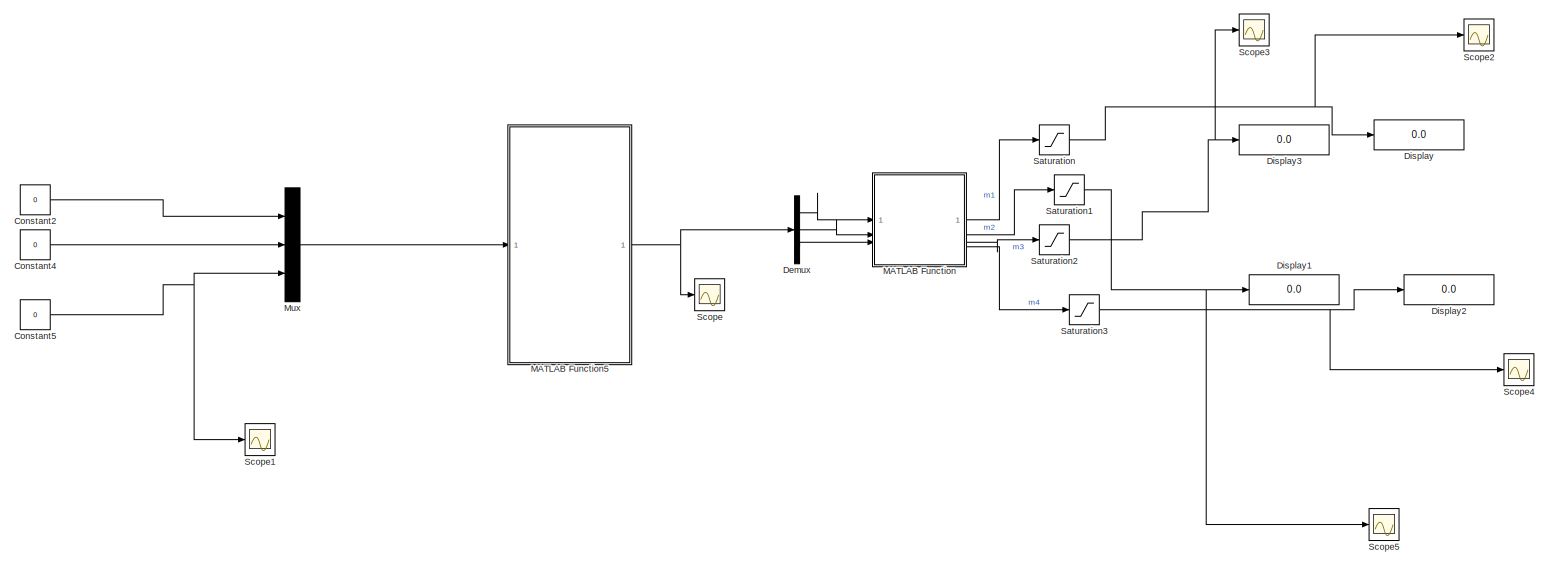
[diagram: root canvas - part 1/1, most of the canvas]
MODEL slx_47c00afb39b6
KIND model
CONFIG AbsTol = auto
CONFIG EnableMultiTasking = on
CONFIG FixedStep = 0.0201
CONFIG InitFcn = load2slx
CONFIG MaxStep = auto
CONFIG MinStep = auto
CONFIG RelTol = 1e-3
CONFIG SampleTimeConstraint = Unconstrained
CONFIG SolverName = FixedStepAuto
CONFIG StartTime = 0.0
CONFIG StopTime = inf
WORKSPACE source: mxarray member
WORKSPACE F = [-0.8618 -0.0262 -0.139 0.76949416 0.05909612 0.20636922 -0.703196288826 -0.093762205164 -0.235412147826 0.652041778329 0.127673420976 0.244158287043 ... (45 elements, 15x3)]
WORKSPACE G = [1.8979 -0.0159 0.0655 -1.64786658 -0.03982206 -0.30473041 1.47864328465 0.106322265122 0.418938594273 -1.35541161888 -0.175057741134 -0.466355599848 ... (225 elements, 15x15)]
WORKSPACE H = [129.750680259 -7.60010398556 -19.5429084562 -100.35260221 7.92753113853 14.4815749694 74.3205001843 -7.58160232914 -10.6139187187 -49.5448089621 6.25955402468 7.17559354227 ... (225 elements, 15x15)]
WORKSPACE Pc = [-1.8979 0.0159 -0.0655 1.8979 -0.0159 0.0655 1.64786658 0.03982206 0.30473041 -1.64786658 -0.03982206 -0.30473041 ... (990 elements, 66x15)]
WORKSPACE Qvec = [10 0 0 0 0 0 0 0 0 0 0 0 ... (225 elements, 15x15)]
WORKSPACE Sc = [-0.8618 -0.0262 -0.139 0.8618 0.0262 0.139 0.76949416 0.05909612 0.20636922 -0.76949416 -0.05909612 -0.20636922 ... (198 elements, 66x3)]
WORKSPACE m = 3
WORKSPACE nu = 15
WORKSPACE qc = [1 1 0.5 1 1 0.5 1 1 0.5 1 1 0.5 ... (66 elements, 66x1)]
BLOCK [Constant] Constant2
  Value = 0
BLOCK [Constant] Constant4
  Value = 0
BLOCK [Constant] Constant5
  Value = 0
BLOCK [Demux] Demux
  Outputs = 3
BLOCK [Display] Display
  Decimation = 1
BLOCK [Display] Display1
  Decimation = 1
BLOCK [Display] Display2
  Decimation = 1
BLOCK [Display] Display3
  Decimation = 1
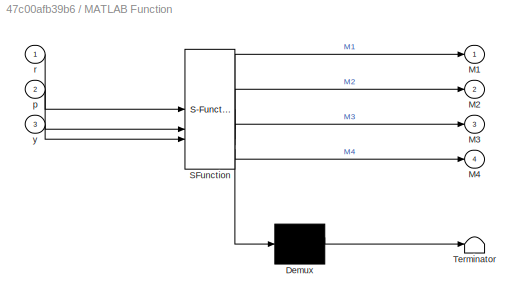
BLOCK [SubSystem] MATLAB Function
  ErrorFcn = Stateflow.Translate.translate
  PermitHierarchicalResolution = ExplicitOnly
  SFBlockType = MATLAB Function
  SystemSampleTime = 0.0201
  TreatAsAtomicUnit = on
BLOCK [Demux] MATLAB Function/ Demux 
  Outputs = 1
BLOCK [S-Function] MATLAB Function/ SFunction 
  EnableBusSupport = off
  FunctionName = sf_sfun
  PortCounts = [3 5]
  SFcnIsStateOwnerBlock = off
  SFunctionDeploymentMode = off
  Tag = Stateflow S-Function 2
BLOCK [Terminator] MATLAB Function/ Terminator 
BLOCK [Outport] MATLAB Function/M1
  VectorParamsAs1DForOutWhenUnconnected = off
BLOCK [Outport] MATLAB Function/M2
  Port = 2
BLOCK [Outport] MATLAB Function/M3
  Port = 3
BLOCK [Outport] MATLAB Function/M4
  Port = 4
BLOCK [Inport] MATLAB Function/p
  Port = 2
BLOCK [Inport] MATLAB Function/r
BLOCK [Inport] MATLAB Function/y
  Port = 3
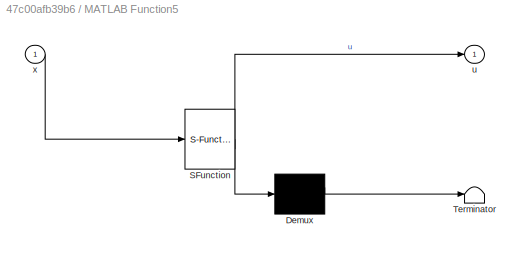
BLOCK [SubSystem] MATLAB Function5
  ErrorFcn = Stateflow.Translate.translate
  PermitHierarchicalResolution = ExplicitOnly
  SFBlockType = MATLAB Function
  SystemSampleTime = 0.0201
  TreatAsAtomicUnit = on
BLOCK [Demux] MATLAB Function5/ Demux 
  Outputs = 1
BLOCK [S-Function] MATLAB Function5/ SFunction 
  EnableBusSupport = off
  FunctionName = sf_sfun
  Parameters = F,G,H,Pc,Qvec,Sc,qc
  PortCounts = [1 2]
  SFcnIsStateOwnerBlock = off
  SFunctionDeploymentMode = off
  Tag = Stateflow S-Function 6
BLOCK [Terminator] MATLAB Function5/ Terminator 
BLOCK [Outport] MATLAB Function5/u
  VectorParamsAs1DForOutWhenUnconnected = off
BLOCK [Inport] MATLAB Function5/x
BLOCK [Mux] Mux
  DisplayOption = bar
  Inputs = 3
BLOCK [Saturate] Saturation
  LowerLimit = 0
  UpperLimit = 1
BLOCK [Saturate] Saturation1
  LowerLimit = 0
  UpperLimit = 1
BLOCK [Saturate] Saturation2
  LowerLimit = 0
  UpperLimit = 1
BLOCK [Saturate] Saturation3
  LowerLimit = 0
  UpperLimit = 1
BLOCK [Scope] Scope
  ActiveDisplayYMaximum = 0.097577906132606917
  ActiveDisplayYMinimum = -0.053985449326909025
  Floating = off
  GraphicalSettings = {"AxesScalingProperties":{"AlignXAxis":"Center","AlignYAxis":"Center","AutoScaleXAxisLimits":false,"AxesScaling":"Manual","AxesScalingNumUpdates":10,"ExpandOnly":true,"ScaleAxesLimitsAtStop":false,"XAxisDataRange":100,"YAxisDataRange":80},"DisplayProperties":{"ColorOrder":["auto","auto","auto","auto","auto","auto","auto","auto","auto","auto","auto","auto","auto","auto","auto","auto","auto","auto",...<+2276ch>
  MultipleDisplayCache = [{"MaxYLimMag":10,"MaxYLimReal":0.097577906132606917,"MinYLimMag":0,"MinYLimReal":-0.053985449326909025,"PlotAsMagnitudePhase":false,"ShowGrid":true,"ShowLegend":true,"Title":"%<SignalLabel>","YLabel":""}]
  NumInputPorts = 1
  ScopeFrameLocation = window
  ShowLegend = on
  WasSavedAsWebScope = on
  WindowPosition = [1319.000000,239.000000,560.000000,420.000000,]
BLOCK [Scope] Scope1
  DataLoggingVariableName = ScopeData1
  Floating = off
  GraphicalSettings = {"GraphicalSettings":{"LegacySettings":true,"Style":{"Style":{"PlotType":"Auto"}}}}
  NumInputPorts = 1
  ScopeFrameLocation = window
  WasSavedAsWebScope = on
  WindowPosition = [1947.000000,365.000000,560.000000,420.000000,]
BLOCK [Scope] Scope2
  DataLoggingVariableName = ScopeData2
  Floating = off
  GraphicalSettings = {"GraphicalSettings":{"LegacySettings":true,"Style":{"Style":{"PlotType":"Auto"}}}}
  NumInputPorts = 1
  ScopeFrameLocation = window
  WasSavedAsWebScope = on
  WindowPosition = [3094.000000,516.000000,560.000000,420.000000,]
BLOCK [Scope] Scope3
  DataLoggingVariableName = ScopeData3
  Floating = off
  GraphicalSettings = {"GraphicalSettings":{"LegacySettings":true,"Style":{"Style":{"PlotType":"Auto"}}}}
  NumInputPorts = 1
  ScopeFrameLocation = window
  WasSavedAsWebScope = on
  WindowPosition = [2378.000000,510.000000,560.000000,420.000000,]
BLOCK [Scope] Scope4
  DataLoggingVariableName = ScopeData4
  Floating = off
  GraphicalSettings = {"GraphicalSettings":{"LegacySettings":true,"Style":{"Style":{"PlotType":"Auto"}}}}
  NumInputPorts = 1
  ScopeFrameLocation = window
  WasSavedAsWebScope = on
  WindowPosition = [3129.000000,16.000000,560.000000,420.000000,]
BLOCK [Scope] Scope5
  DataLoggingVariableName = ScopeData5
  Floating = off
  GraphicalSettings = {"GraphicalSettings":{"LegacySettings":true,"Style":{"Style":{"PlotType":"Auto"}}}}
  NumInputPorts = 1
  ScopeFrameLocation = window
  WasSavedAsWebScope = on
  WindowPosition = [2402.000000,65.000000,560.000000,420.000000,]
LINE Constant2:1 -> Mux:1
LINE Constant4:1 -> Mux:2
NET Constant5:1 -> Mux:3, Scope1:1
LINE Demux:1 -> MATLAB Function:1
LINE Demux:2 -> MATLAB Function:2
LINE Demux:3 -> MATLAB Function:3
NET MATLAB Function5:1 -> Demux:1, Scope:1
LINE MATLAB Function:1 -> Saturation:1
LINE MATLAB Function:2 -> Saturation1:1
LINE MATLAB Function:3 -> Saturation2:1
LINE MATLAB Function:4 -> Saturation3:1
LINE Mux:1 -> MATLAB Function5:1
NET Saturation1:1 -> Display1:1, Scope5:1
NET Saturation2:1 -> Display3:1, Scope3:1
NET Saturation3:1 -> Display2:1, Scope4:1
NET Saturation:1 -> Display:1, Scope2:1
note: NET lines group one-source signal fan-out (src -> all destinations, sorted); 1:1 wires keep LINE
CHART MATLAB Function states=1 transitions=1
  STATE_LABEL 'eML_blk_kernel()'
  STATE_LABEL 'SCRIPT:\nfunction [M1,M2,M3,M4] = fcn( r, p, y)\n% t: thrust\n% r: roll\n% p: pitch\n% y: yaw\npersistent trim mixer thrust\n% M1 = t + r + p - y;\n% M2 = t - r - p - y;\n% M3 = t - r + p + y;\n% M4 = t + r - p + y;\ntrim = [0.1344;0.2078;0.1551;0.2548];\nthrust = 0;\nu = [r;p;y; thrust];\nmixer = [1 -1 -1 1;\n        1 -1 1 -1;\n        1 1 -1 -1\n        1 1 1 1];\nM = mixer\\u;\nM1= M(1,1)+trim(1,1);\nM2= M(2,1)+tr...<+53ch>'
CHART MATLAB Function5 states=1 transitions=1
  STATE_LABEL 'eML_blk_kernel()'
  STATE_LABEL "SCRIPT:\nfunction u = mpc_function(x, H, F, Qvec, G, Pc, qc, Sc)\npersistent opts x0 u_prev\nx = double(x);\nif isempty(u_prev)\n    u_prev = zeros(3,1,'double');\nend\n\nif isempty(x0)\n    x0 = zeros(15,1,'double');\nend\n% uvec = zeros(nu,1);\n% === Construcción del QP ===\nf = (2*x'*F'*Qvec*G)';\n\n% Resolver QP\nif isempty(opts)\nopts = optimoptions('quadprog', 'Algorithm','active-set','Display','off');\nend\n[...<+197ch>"
CHART  states=0 transitions=0
CHART  states=0 transitions=0
